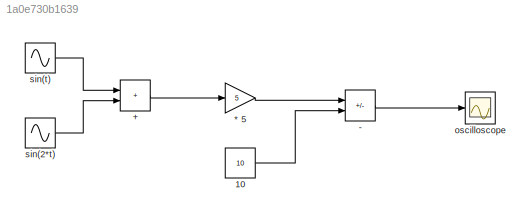
MODEL slx_1a0e730b1639
KIND model
CONFIG AbsTol = auto
CONFIG EnableMultiTasking = off
CONFIG FixedStep = auto
CONFIG MaxStep = auto
CONFIG MinStep = auto
CONFIG RelTol = 1e-3
CONFIG SampleTimeConstraint = Unconstrained
CONFIG SolverName = VariableStepAuto
CONFIG StartTime = 0.0
CONFIG StopTime = 10.0
BLOCK [Gain] * 5
  Gain = 5
BLOCK [Sum] +
  IconShape = rectangular
BLOCK [Sum] -
  IconShape = rectangular
  Inputs = +-
BLOCK [Constant] 10
  Value = 10
BLOCK [Scope] oscilloscope
  Floating = off
  NumInputPorts = 1
  ScopeSpecificationString = Simulink.scopes.TimeScopeBlockCfg('CurrentConfiguration', extmgr.ConfigurationSet(extmgr.Configuration('Core','General UI',true),extmgr.Configuration('Core','Source UI',true),extmgr.Configuration('Sources','WiredSimulink',true),extmgr.Configuration('Visuals','Time Domain',true,'SerializedDisplays',{struct('MinYLimReal','-20.96415','MaxYLimReal','0.99227','YLabelReal','','MinYLimMag','0.00000','Max...<+1414ch>
BLOCK [Sin] sin(2*t)
  Frequency = 2
  SampleTime = 0
BLOCK [Sin] sin(t)
  SampleTime = 0
LINE * 5:1 -> -:1
LINE +:1 -> * 5:1
LINE -:1 -> oscilloscope:1
LINE 10:1 -> -:2
LINE sin(2*t):1 -> +:2
LINE sin(t):1 -> +:1
